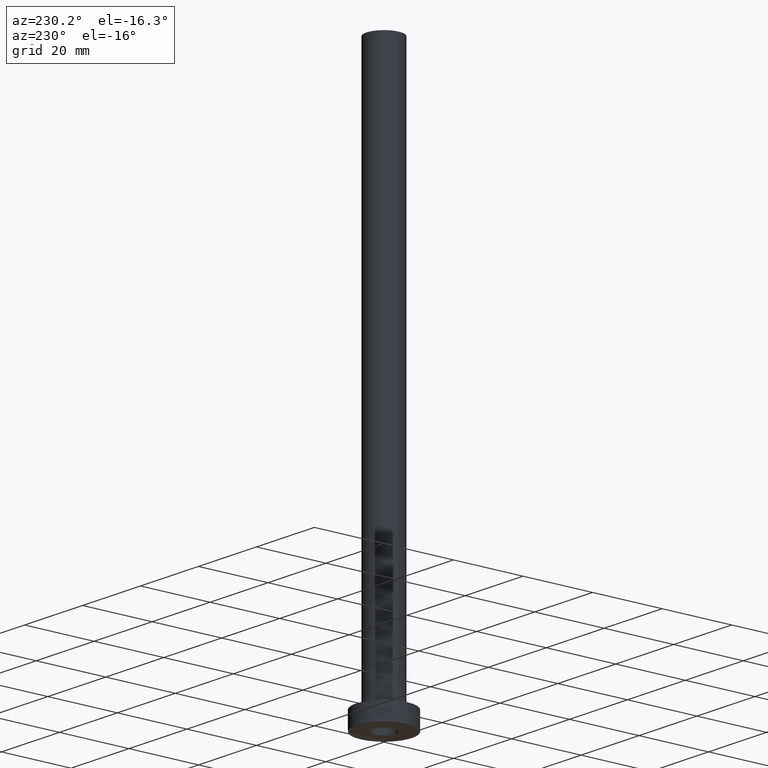
[diagram: clean part render]
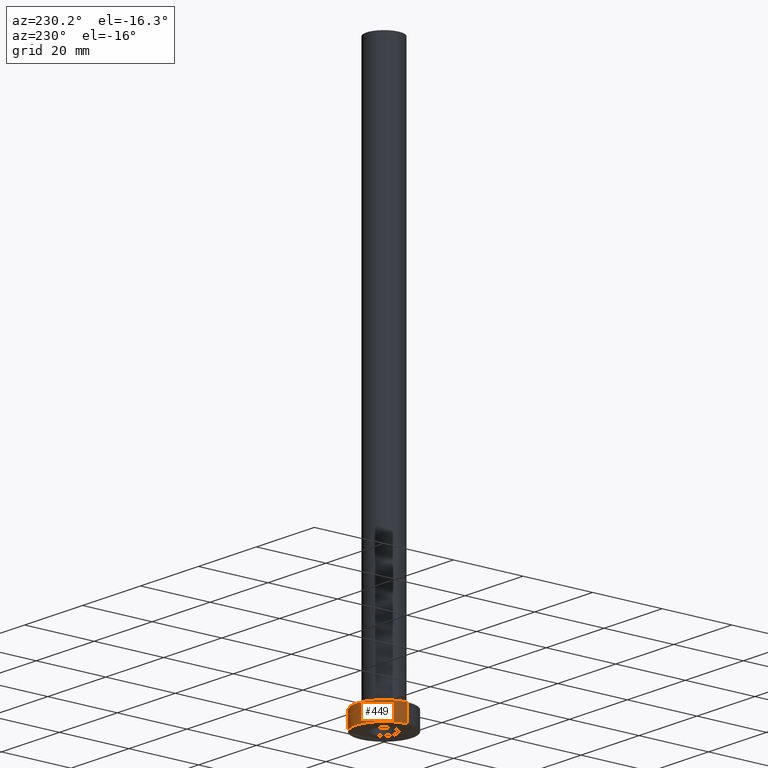
[diagram: same view with one face highlighted and labeled with its STEP entity id]
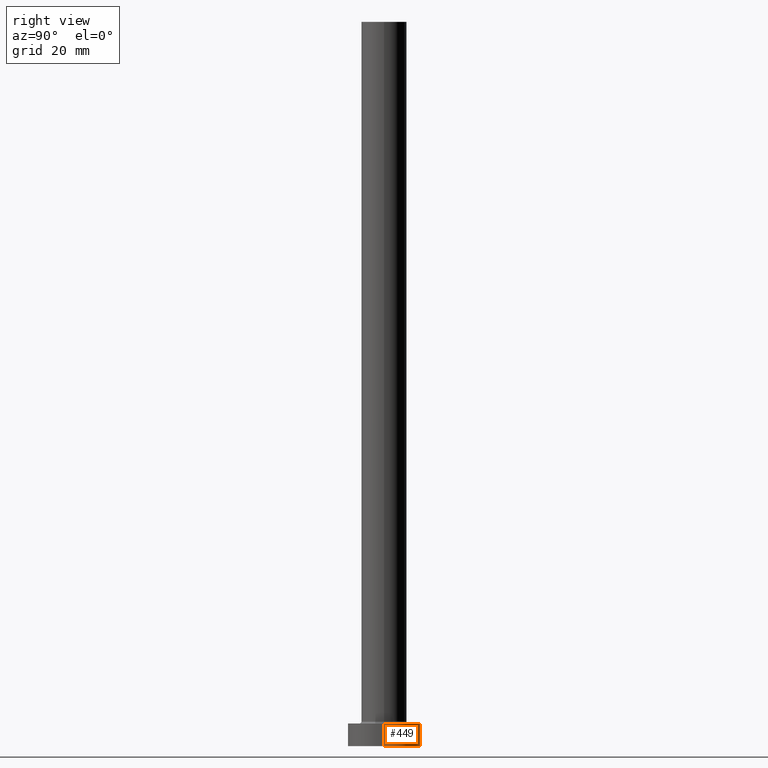
[diagram: same view with one face highlighted and labeled with its STEP entity id]
A machine part, auxiliary view. The second image highlights one B-rep face of the part: STEP entity #449.
A second angle (right view) of the same face is appended — the face is thin or edge-on in the first view.
In plain terms, the highlighted cylindrical surface (edge-blend (fillet) strip) has radius 8 mm, axis along (-0, -0, -1).
Its self-contained STEP definition (entity closure, byte-faithful):
#20 = CARTESIAN_POINT ( 'NONE',  ( -8.000000000000000000, 0.000000000000000000, 5.000000000000000000 ) ) ;
#37 = DIRECTION ( 'NONE',  ( 1.000000000000000000, 0.000000000000000000, 0.000000000000000000 ) ) ;
#64 = CARTESIAN_POINT ( 'NONE',  ( 0.000000000000000000, 0.000000000000000000, 5.000000000000000000 ) ) ;
#77 = CYLINDRICAL_SURFACE ( 'NONE', #265, 8.000000000000000000 ) ;
#94 = VERTEX_POINT ( 'NONE', #320 ) ;
#104 = DIRECTION ( 'NONE',  ( 0.000000000000000000, 0.000000000000000000, 1.000000000000000000 ) ) ;
#105 = ORIENTED_EDGE ( 'NONE', *, *, #245, .F. ) ;
#114 = CIRCLE ( 'NONE', #176, 8.000000000000000000 ) ;
#123 = VECTOR ( 'NONE', #136, 1000.000000000000000 ) ;
#136 = DIRECTION ( 'NONE',  ( -0.000000000000000000, -0.000000000000000000, -1.000000000000000000 ) ) ;
#154 = ORIENTED_EDGE ( 'NONE', *, *, #324, .T. ) ;
#165 = CARTESIAN_POINT ( 'NONE',  ( 8.000000000000000000, 9.797174393178825657E-16, 0.000000000000000000 ) ) ;
#176 = AXIS2_PLACEMENT_3D ( 'NONE', #64, #316, #346 ) ;
#179 = DIRECTION ( 'NONE',  ( -0.000000000000000000, -0.000000000000000000, -1.000000000000000000 ) ) ;
#211 = CARTESIAN_POINT ( 'NONE',  ( 0.000000000000000000, 0.000000000000000000, 0.000000000000000000 ) ) ;
#221 = CARTESIAN_POINT ( 'NONE',  ( 0.000000000000000000, 0.000000000000000000, 5.000000000000000000 ) ) ;
#235 = CARTESIAN_POINT ( 'NONE',  ( -8.000000000000000000, 0.000000000000000000, 0.000000000000000000 ) ) ;
#245 = EDGE_CURVE ( 'NONE', #94, #268, #336, .T. ) ;
#250 = ORIENTED_EDGE ( 'NONE', *, *, #285, .F. ) ;
#252 = VECTOR ( 'NONE', #407, 1000.000000000000000 ) ;
#265 = AXIS2_PLACEMENT_3D ( 'NONE', #221, #179, #318 ) ;
#268 = VERTEX_POINT ( 'NONE', #235 ) ;
#269 = CARTESIAN_POINT ( 'NONE',  ( 8.000000000000000000, 9.797174393178825657E-16, 5.000000000000000000 ) ) ;
#271 = VERTEX_POINT ( 'NONE', #165 ) ;
#285 = EDGE_CURVE ( 'NONE', #293, #94, #114, .T. ) ;
#286 = FACE_OUTER_BOUND ( 'NONE', #454, .T. ) ;
#287 = AXIS2_PLACEMENT_3D ( 'NONE', #211, #104, #37 ) ;
#293 = VERTEX_POINT ( 'NONE', #414 ) ;
#295 = ORIENTED_EDGE ( 'NONE', *, *, #361, .T. ) ;
#316 = DIRECTION ( 'NONE',  ( 0.000000000000000000, 0.000000000000000000, 1.000000000000000000 ) ) ;
#318 = DIRECTION ( 'NONE',  ( -1.000000000000000000, 0.000000000000000000, 0.000000000000000000 ) ) ;
#320 = CARTESIAN_POINT ( 'NONE',  ( -8.000000000000000000, 0.000000000000000000, 5.000000000000000000 ) ) ;
#321 = CIRCLE ( 'NONE', #287, 8.000000000000000000 ) ;
#324 = EDGE_CURVE ( 'NONE', #271, #268, #321, .T. ) ;
#336 = LINE ( 'NONE', #20, #252 ) ;
#346 = DIRECTION ( 'NONE',  ( 1.000000000000000000, 0.000000000000000000, 0.000000000000000000 ) ) ;
#361 = EDGE_CURVE ( 'NONE', #293, #271, #420, .T. ) ;
#407 = DIRECTION ( 'NONE',  ( -0.000000000000000000, -0.000000000000000000, -1.000000000000000000 ) ) ;
#414 = CARTESIAN_POINT ( 'NONE',  ( 8.000000000000000000, 9.797174393178825657E-16, 5.000000000000000000 ) ) ;
#420 = LINE ( 'NONE', #269, #123 ) ;
#449 = ADVANCED_FACE ( 'NONE', ( #286 ), #77, .T. ) ;
#454 = EDGE_LOOP ( 'NONE', ( #250, #295, #154, #105 ) ) ;